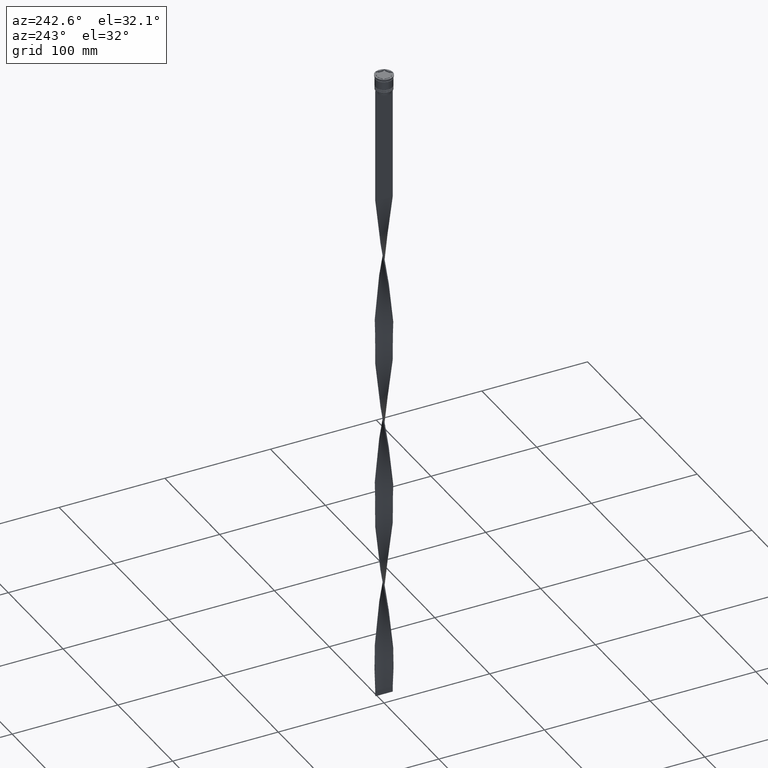
[diagram: clean part render]
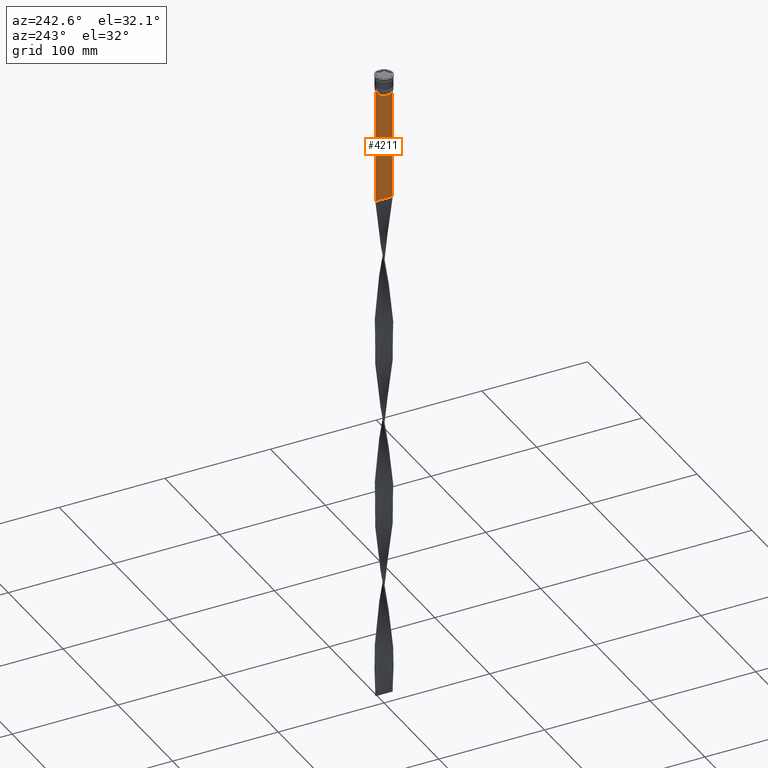
[diagram: same view with one face highlighted and labeled with its STEP entity id]
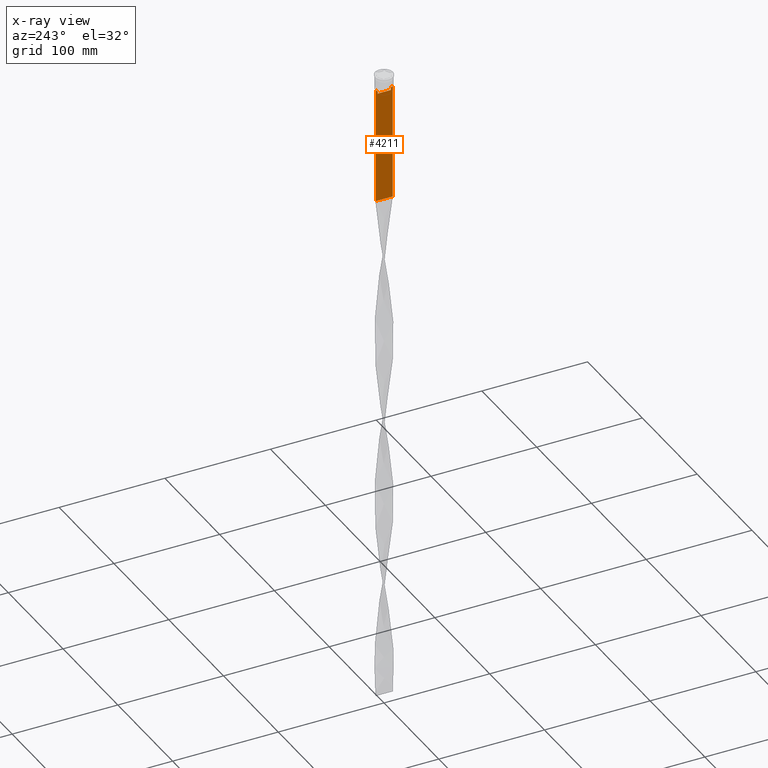
[diagram: x-ray of the same camera — body ghosted, the highlighted face saturated]
A machine part, auxiliary view. The second image highlights one B-rep face of the part: STEP entity #4211.
The next image is the same camera in x-ray: the body ghosted, the highlighted face saturated — about 0% of this face is hidden behind the body in this view.
In plain terms, the highlighted planar face has unit normal (-1, 0, 0).
Its self-contained STEP definition (entity closure, byte-faithful):
#82 = LINE ( 'NONE', #1487, #459 ) ;
#103 = VERTEX_POINT ( 'NONE', #582 ) ;
#111 = VECTOR ( 'NONE', #4218, 1000.000000000000000 ) ;
#147 = DIRECTION ( 'NONE',  ( 0.000000000000000000, -1.000000000000000000, 0.000000000000000000 ) ) ;
#235 = LINE ( 'NONE', #3719, #4085 ) ;
#270 = EDGE_CURVE ( 'NONE', #2807, #3911, #966, .T. ) ;
#273 = CARTESIAN_POINT ( 'NONE',  ( -0.4999999999999998890, 6.881860213634098500, -14.00000000000000178 ) ) ;
#404 = ORIENTED_EDGE ( 'NONE', *, *, #3101, .F. ) ;
#437 = ORIENTED_EDGE ( 'NONE', *, *, #716, .F. ) ;
#453 = VERTEX_POINT ( 'NONE', #4149 ) ;
#459 = VECTOR ( 'NONE', #147, 1000.000000000000000 ) ;
#510 = DIRECTION ( 'NONE',  ( 0.000000000000000000, -1.000000000000000000, 0.000000000000000000 ) ) ;
#539 = CARTESIAN_POINT ( 'NONE',  ( -0.4999999999999998890, -8.000000000000003553, -123.0000000000000000 ) ) ;
#582 = CARTESIAN_POINT ( 'NONE',  ( -0.4999999999999998890, 6.380438856379708312, -17.00000000000000000 ) ) ;
#596 = CARTESIAN_POINT ( 'NONE',  ( -0.4999999999999998890, 7.999999999999996447, 2.031219541881394530 ) ) ;
#622 = ORIENTED_EDGE ( 'NONE', *, *, #1590, .F. ) ;
#657 = CARTESIAN_POINT ( 'NONE',  ( -0.4999999999999998890, -8.000000000000003553, -123.0000000000000000 ) ) ;
#678 = CARTESIAN_POINT ( 'NONE',  ( -0.4999999999999998890, -6.881860213634098500, -14.00000000000000178 ) ) ;
#714 = ORIENTED_EDGE ( 'NONE', *, *, #2469, .F. ) ;
#716 = EDGE_CURVE ( 'NONE', #453, #2848, #82, .T. ) ;
#742 = DIRECTION ( 'NONE',  ( -0.000000000000000000, -0.000000000000000000, 1.000000000000000000 ) ) ;
#855 = ORIENTED_EDGE ( 'NONE', *, *, #3385, .F. ) ;
#856 = CARTESIAN_POINT ( 'NONE',  ( -0.4999999999999998890, -8.000000000000003553, -14.00000000000000178 ) ) ;
#935 = DIRECTION ( 'NONE',  ( 0.000000000000000000, 1.000000000000000000, 0.000000000000000000 ) ) ;
#966 = LINE ( 'NONE', #596, #1826 ) ;
#982 = ORIENTED_EDGE ( 'NONE', *, *, #2900, .F. ) ;
#1018 = LINE ( 'NONE', #4156, #4221 ) ;
#1034 = VERTEX_POINT ( 'NONE', #657 ) ;
#1043 = LINE ( 'NONE', #3517, #4163 ) ;
#1068 = CARTESIAN_POINT ( 'NONE',  ( -0.4999999999999998890, 6.380438856379708312, -14.50000000000000000 ) ) ;
#1139 = CARTESIAN_POINT ( 'NONE',  ( -0.4999999999999998890, -6.881860213634098500, -14.00000000000000178 ) ) ;
#1200 = VECTOR ( 'NONE', #2287, 1000.000000000000000 ) ;
#1289 = CARTESIAN_POINT ( 'NONE',  ( -0.4999999999999998890, -8.000000000000003553, 2.031219541881394530 ) ) ;
#1386 = CARTESIAN_POINT ( 'NONE',  ( -0.4999999999999998890, -6.380438856379708312, -14.50000000000000000 ) ) ;
#1465 = CARTESIAN_POINT ( 'NONE',  ( -0.4999999999999998890, -6.547597841511246131, -14.33335192438652328 ) ) ;
#1487 = CARTESIAN_POINT ( 'NONE',  ( -0.4999999999999998890, -8.000000000000003553, -14.00000000000000178 ) ) ;
#1590 = EDGE_CURVE ( 'NONE', #103, #1862, #235, .T. ) ;
#1649 = CARTESIAN_POINT ( 'NONE',  ( -0.4999999999999998890, 6.547597841304911626, -14.33335192459222718 ) ) ;
#1651 = B_SPLINE_CURVE_WITH_KNOTS ( 'NONE', 3,
 ( #273, #2037, #1649, #4353 ),
 .UNSPECIFIED., .F., .F.,
 ( 4, 4 ),
 ( 0.01172465562756038263, 0.01243276816391822651 ),
 .UNSPECIFIED. ) ;
#1698 = EDGE_CURVE ( 'NONE', #2033, #3219, #1018, .T. ) ;
#1716 = CARTESIAN_POINT ( 'NONE',  ( -0.4999999999999998890, -6.380438856379708312, -17.00000000000000000 ) ) ;
#1745 = CARTESIAN_POINT ( 'NONE',  ( -0.4999999999999998890, 7.999999999999996447, -123.0000000000000000 ) ) ;
#1826 = VECTOR ( 'NONE', #2005, 1000.000000000000000 ) ;
#1862 = VERTEX_POINT ( 'NONE', #1716 ) ;
#2005 = DIRECTION ( 'NONE',  ( 0.000000000000000000, 0.000000000000000000, -1.000000000000000000 ) ) ;
#2014 = FACE_OUTER_BOUND ( 'NONE', #3226, .T. ) ;
#2033 = VERTEX_POINT ( 'NONE', #3593 ) ;
#2037 = CARTESIAN_POINT ( 'NONE',  ( -0.4999999999999998890, 6.714736947114692711, -14.16668390704818847 ) ) ;
#2040 = CARTESIAN_POINT ( 'NONE',  ( -0.4999999999999998890, -6.380438856379708312, 0.000000000000000000 ) ) ;
#2050 = DIRECTION ( 'NONE',  ( 0.000000000000000000, -1.000000000000000000, 0.000000000000000000 ) ) ;
#2093 = ORIENTED_EDGE ( 'NONE', *, *, #3538, .F. ) ;
#2122 = ORIENTED_EDGE ( 'NONE', *, *, #3032, .F. ) ;
#2287 = DIRECTION ( 'NONE',  ( 0.000000000000000000, -1.000000000000000000, 0.000000000000000000 ) ) ;
#2349 = ORIENTED_EDGE ( 'NONE', *, *, #270, .T. ) ;
#2383 = CARTESIAN_POINT ( 'NONE',  ( -0.4999999999999998890, 6.881860213634098500, -14.00000000000000178 ) ) ;
#2469 = EDGE_CURVE ( 'NONE', #3297, #3134, #3262, .T. ) ;
#2607 = DIRECTION ( 'NONE',  ( 0.000000000000000000, -1.000000000000000000, 0.000000000000000000 ) ) ;
#2648 = ORIENTED_EDGE ( 'NONE', *, *, #3899, .F. ) ;
#2668 = LINE ( 'NONE', #4378, #1200 ) ;
#2694 = CARTESIAN_POINT ( 'NONE',  ( -0.4999999999999998890, -6.380438856379708312, -14.50000000000000000 ) ) ;
#2724 = AXIS2_PLACEMENT_3D ( 'NONE', #1289, #2948, #3285 ) ;
#2807 = VERTEX_POINT ( 'NONE', #3290 ) ;
#2834 = CARTESIAN_POINT ( 'NONE',  ( -0.4999999999999998890, -8.000000000000003553, 2.031219541881394530 ) ) ;
#2842 = CARTESIAN_POINT ( 'NONE',  ( -0.4999999999999998890, -6.714736947305992132, -14.16668390685738999 ) ) ;
#2848 = VERTEX_POINT ( 'NONE', #3224 ) ;
#2900 = EDGE_CURVE ( 'NONE', #1034, #3911, #3628, .T. ) ;
#2948 = DIRECTION ( 'NONE',  ( -1.000000000000000000, 0.000000000000000000, 0.000000000000000000 ) ) ;
#3032 = EDGE_CURVE ( 'NONE', #3219, #3848, #1651, .T. ) ;
#3077 = VECTOR ( 'NONE', #510, 1000.000000000000000 ) ;
#3092 = LINE ( 'NONE', #2040, #4443 ) ;
#3101 = EDGE_CURVE ( 'NONE', #3134, #453, #2668, .T. ) ;
#3132 = DIRECTION ( 'NONE',  ( 0.000000000000000000, 0.000000000000000000, -1.000000000000000000 ) ) ;
#3134 = VERTEX_POINT ( 'NONE', #678 ) ;
#3219 = VERTEX_POINT ( 'NONE', #2383 ) ;
#3224 = CARTESIAN_POINT ( 'NONE',  ( -0.4999999999999998890, -8.000000000000003553, -14.00000000000000178 ) ) ;
#3226 = EDGE_LOOP ( 'NONE', ( #2122, #3440, #4272, #2349, #982, #855, #437, #404, #714, #2648, #622, #2093 ) ) ;
#3262 = B_SPLINE_CURVE_WITH_KNOTS ( 'NONE', 3,
 ( #1386, #1465, #2842, #1139 ),
 .UNSPECIFIED., .F., .F.,
 ( 4, 4 ),
 ( 0.02996184199614749730, 0.03067452609193703841 ),
 .UNSPECIFIED. ) ;
#3285 = DIRECTION ( 'NONE',  ( 0.000000000000000000, 0.000000000000000000, 1.000000000000000000 ) ) ;
#3290 = CARTESIAN_POINT ( 'NONE',  ( -0.4999999999999998890, 7.999999999999996447, -14.00000000000000178 ) ) ;
#3297 = VERTEX_POINT ( 'NONE', #2694 ) ;
#3385 = EDGE_CURVE ( 'NONE', #2848, #1034, #3879, .T. ) ;
#3440 = ORIENTED_EDGE ( 'NONE', *, *, #1698, .F. ) ;
#3517 = CARTESIAN_POINT ( 'NONE',  ( -0.4999999999999998890, 6.380438856379708312, 0.000000000000000000 ) ) ;
#3538 = EDGE_CURVE ( 'NONE', #3848, #103, #1043, .T. ) ;
#3593 = CARTESIAN_POINT ( 'NONE',  ( -0.4999999999999998890, 7.884161337770806632, -14.00000000000000178 ) ) ;
#3601 = LINE ( 'NONE', #856, #3077 ) ;
#3622 = PLANE ( 'NONE',  #2724 ) ;
#3628 = LINE ( 'NONE', #539, #4297 ) ;
#3719 = CARTESIAN_POINT ( 'NONE',  ( -0.4999999999999998890, 6.399999999999999467, -17.00000000000000000 ) ) ;
#3848 = VERTEX_POINT ( 'NONE', #1068 ) ;
#3879 = LINE ( 'NONE', #2834, #111 ) ;
#3899 = EDGE_CURVE ( 'NONE', #1862, #3297, #3092, .T. ) ;
#3911 = VERTEX_POINT ( 'NONE', #1745 ) ;
#4085 = VECTOR ( 'NONE', #2607, 1000.000000000000000 ) ;
#4149 = CARTESIAN_POINT ( 'NONE',  ( -0.4999999999999998890, -7.884161337770806632, -14.00000000000000178 ) ) ;
#4156 = CARTESIAN_POINT ( 'NONE',  ( -0.4999999999999998890, -8.000000000000003553, -14.00000000000000178 ) ) ;
#4163 = VECTOR ( 'NONE', #3132, 1000.000000000000000 ) ;
#4184 = EDGE_CURVE ( 'NONE', #2807, #2033, #3601, .T. ) ;
#4211 = ADVANCED_FACE ( 'NONE', ( #2014 ), #3622, .T. ) ;
#4218 = DIRECTION ( 'NONE',  ( 0.000000000000000000, 0.000000000000000000, -1.000000000000000000 ) ) ;
#4221 = VECTOR ( 'NONE', #2050, 1000.000000000000000 ) ;
#4272 = ORIENTED_EDGE ( 'NONE', *, *, #4184, .F. ) ;
#4297 = VECTOR ( 'NONE', #935, 1000.000000000000000 ) ;
#4353 = CARTESIAN_POINT ( 'NONE',  ( -0.4999999999999998890, 6.380438856379708312, -14.50000000000000000 ) ) ;
#4378 = CARTESIAN_POINT ( 'NONE',  ( -0.4999999999999998890, -8.000000000000003553, -14.00000000000000178 ) ) ;
#4443 = VECTOR ( 'NONE', #742, 1000.000000000000000 ) ;